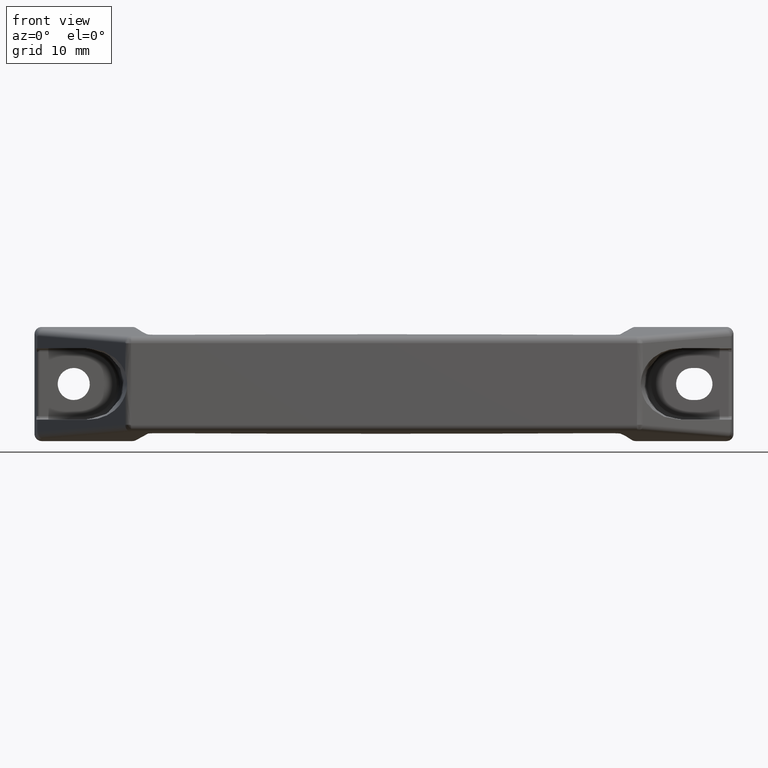
[diagram: clean part render]
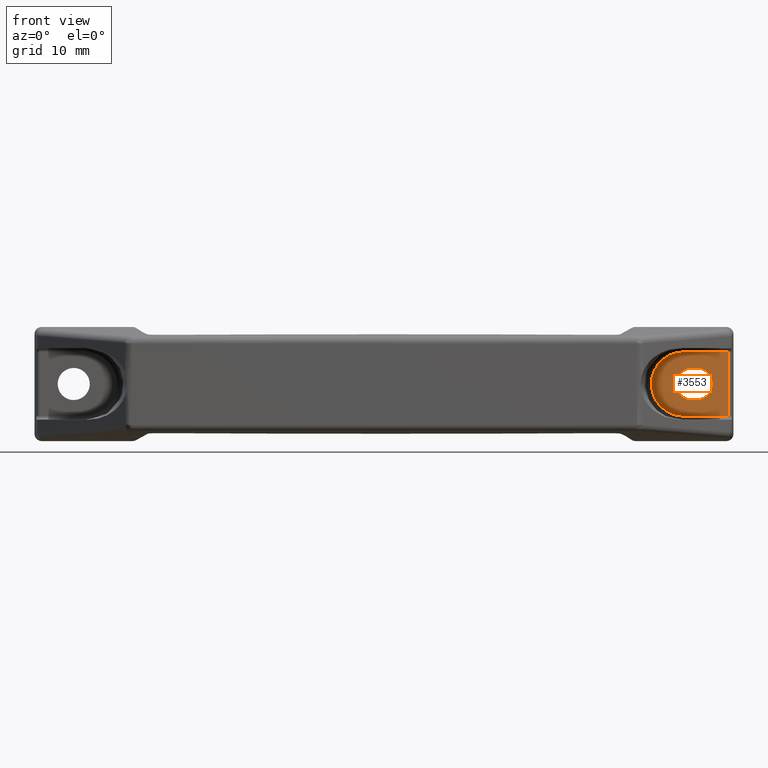
[diagram: same view with one face highlighted and labeled with its STEP entity id]
A machine part, front view. The second image highlights one B-rep face of the part: STEP entity #3553.
In plain terms, the highlighted face is a freeform B-spline surface patch.
Its self-contained STEP definition (entity closure, byte-faithful):
#822=CARTESIAN_POINT('',(87.299999999999997,-5.0,-2.250000000000115));
#823=VERTEX_POINT('',#822);
#829=CARTESIAN_POINT('',(87.299999999999997,-5.0,2.249999999999885));
#830=VERTEX_POINT('',#829);
#831=CARTESIAN_POINT('',(87.299999999999997,-5.0,-2.250000000000113));
#832=CARTESIAN_POINT('',(89.550000000000011,-4.999999999999999,-2.250000000000114));
#833=CARTESIAN_POINT('',(89.550000000000011,-5.0,-1.136868E-013));
#834=CARTESIAN_POINT('',(89.550000000000011,-4.999999999999999,2.249999999999886));
#835=CARTESIAN_POINT('',(87.299999999999997,-5.0,2.249999999999886));
#843=(BOUNDED_CURVE()B_SPLINE_CURVE(2,(#831,#832,#833,#834,#835),.UNSPECIFIED.,.F.,.U.)B_SPLINE_CURVE_WITH_KNOTS((3,2,3),(0.0,0.500000000000000,1.0),.UNSPECIFIED.)CURVE()GEOMETRIC_REPRESENTATION_ITEM()RATIONAL_B_SPLINE_CURVE((1.0,0.707106781186547,1.0,0.707106781186547,1.0))REPRESENTATION_ITEM(''));
#844=EDGE_CURVE('',#823,#830,#843,.T.);
#866=CARTESIAN_POINT('',(86.700000000000003,-5.0,-2.250000000000140));
#867=VERTEX_POINT('',#866);
#873=CARTESIAN_POINT('',(86.700000000000003,-5.0,-2.250000000000140));
#874=CARTESIAN_POINT('',(87.299999999999997,-5.0,-2.250000000000115));
#875=QUASI_UNIFORM_CURVE('',1,(#873,#874),.UNSPECIFIED.,.F.,.U.);
#876=EDGE_CURVE('',#867,#823,#875,.T.);
#917=CARTESIAN_POINT('',(86.700000000000003,-5.0,2.249999999999915));
#918=VERTEX_POINT('',#917);
#924=CARTESIAN_POINT('',(86.700000000000003,-5.0,2.249999999999916));
#925=CARTESIAN_POINT('',(84.449999999999974,-5.000000000000001,2.249999999999917));
#926=CARTESIAN_POINT('',(84.449999999999974,-5.0,-1.136868E-013));
#927=CARTESIAN_POINT('',(84.449999999999974,-5.000000000000001,-2.250000000000143));
#928=CARTESIAN_POINT('',(86.700000000000003,-5.0,-2.250000000000143));
#936=(BOUNDED_CURVE()B_SPLINE_CURVE(2,(#924,#925,#926,#927,#928),.UNSPECIFIED.,.F.,.U.)B_SPLINE_CURVE_WITH_KNOTS((3,2,3),(0.0,0.500000000000000,1.0),.UNSPECIFIED.)CURVE()GEOMETRIC_REPRESENTATION_ITEM()RATIONAL_B_SPLINE_CURVE((1.0,0.707106781186548,1.0,0.707106781186548,1.0))REPRESENTATION_ITEM(''));
#937=EDGE_CURVE('',#918,#867,#936,.T.);
#954=CARTESIAN_POINT('',(87.299999999999997,-5.0,2.249999999999885));
#955=CARTESIAN_POINT('',(86.700000000000003,-5.0,2.249999999999915));
#956=QUASI_UNIFORM_CURVE('',1,(#954,#955),.UNSPECIFIED.,.F.,.U.);
#957=EDGE_CURVE('',#830,#918,#956,.T.);
#1016=CARTESIAN_POINT('',(91.763478820214715,-5.0,4.499999999999840));
#1017=VERTEX_POINT('',#1016);
#1063=CARTESIAN_POINT('',(85.481615913176810,-5.0,4.499999999999885));
#1064=VERTEX_POINT('',#1063);
#1078=CARTESIAN_POINT('',(91.763478820214715,-5.0,4.499999999999840));
#1079=CARTESIAN_POINT('',(85.481615913176810,-5.0,4.499999999999885));
#1080=QUASI_UNIFORM_CURVE('',1,(#1078,#1079),.UNSPECIFIED.,.F.,.U.);
#1081=EDGE_CURVE('',#1017,#1064,#1080,.T.);
#1156=CARTESIAN_POINT('',(85.481615913176810,-5.0,-4.500000000000110));
#1157=VERTEX_POINT('',#1156);
#1171=CARTESIAN_POINT('',(85.481615913176810,-5.0,4.499999999999885));
#1172=CARTESIAN_POINT('',(82.880480423535204,-5.0,4.500000067055112));
#1173=CARTESIAN_POINT('',(81.579912581814526,-5.0,2.250000067055112));
#1174=CARTESIAN_POINT('',(80.279344740093862,-5.0,0.000000067055112));
#1175=CARTESIAN_POINT('',(81.579912523674622,-5.0,-2.249999966472500));
#1176=CARTESIAN_POINT('',(82.880480307255368,-5.0,-4.500000000000115));
#1177=CARTESIAN_POINT('',(85.481615913176810,-5.0,-4.500000000000114));
#1185=(BOUNDED_CURVE()B_SPLINE_CURVE(2,(#1171,#1172,#1173,#1174,#1175,#1176,#1177),.UNSPECIFIED.,.F.,.U.)B_SPLINE_CURVE_WITH_KNOTS((3,2,2,3),(0.0,0.333333333333333,0.666666666666667,1.0),.UNSPECIFIED.)CURVE()GEOMETRIC_REPRESENTATION_ITEM()RATIONAL_B_SPLINE_CURVE((1.0,0.866025401633640,1.0,0.866025401633640,1.0,0.866025401633640,1.0))REPRESENTATION_ITEM(''));
#1186=EDGE_CURVE('',#1064,#1157,#1185,.T.);
#1225=CARTESIAN_POINT('',(91.763478820214715,-5.0,-4.500000000000060));
#1226=VERTEX_POINT('',#1225);
#1242=CARTESIAN_POINT('',(85.481615913176810,-5.0,-4.500000000000110));
#1243=CARTESIAN_POINT('',(91.763478820214715,-5.0,-4.500000000000060));
#1244=QUASI_UNIFORM_CURVE('',1,(#1242,#1243),.UNSPECIFIED.,.F.,.U.);
#1245=EDGE_CURVE('',#1157,#1226,#1244,.T.);
#1517=CARTESIAN_POINT('',(91.763478820214715,-5.0,4.499999999999840));
#1518=CARTESIAN_POINT('',(91.763478820214715,-5.0,-4.500000000000060));
#1519=QUASI_UNIFORM_CURVE('',1,(#1517,#1518),.UNSPECIFIED.,.F.,.U.);
#1520=EDGE_CURVE('',#1017,#1226,#1519,.T.);
#3536=CARTESIAN_POINT('',(80.437499517699152,-5.0,4.949549982556137));
#3537=CARTESIAN_POINT('',(80.437499517699152,-5.0,-4.949550223955175));
#3538=CARTESIAN_POINT('',(92.302300187850577,-5.0,4.949549982556137));
#3539=CARTESIAN_POINT('',(92.302300187850577,-5.0,-4.949550223955175));
#3540=B_SPLINE_SURFACE_WITH_KNOTS('',1,1,((#3536,#3538),(#3537,#3539)),.UNSPECIFIED.,.F.,.F.,.U.,(2,2),(2,2),(0.0,9.899100206511312),(0.0,11.864800670151430),.UNSPECIFIED.);
#3541=ORIENTED_EDGE('',*,*,#1520,.F.);
#3542=ORIENTED_EDGE('',*,*,#1081,.T.);
#3543=ORIENTED_EDGE('',*,*,#1186,.T.);
#3544=ORIENTED_EDGE('',*,*,#1245,.T.);
#3545=EDGE_LOOP('',(#3541,#3542,#3543,#3544));
#3546=FACE_OUTER_BOUND('',#3545,.T.);
#3547=ORIENTED_EDGE('',*,*,#937,.F.);
#3548=ORIENTED_EDGE('',*,*,#957,.F.);
#3549=ORIENTED_EDGE('',*,*,#844,.F.);
#3550=ORIENTED_EDGE('',*,*,#876,.F.);
#3551=EDGE_LOOP('',(#3547,#3548,#3549,#3550));
#3552=FACE_BOUND('',#3551,.T.);
#3553=ADVANCED_FACE('',(#3546,#3552),#3540,.T.);